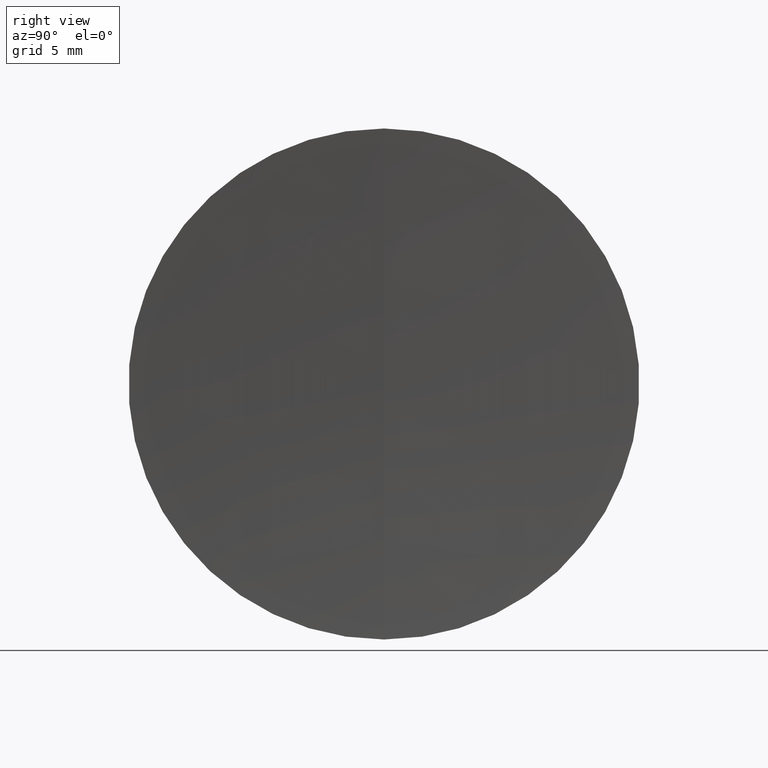
[diagram: clean part render]
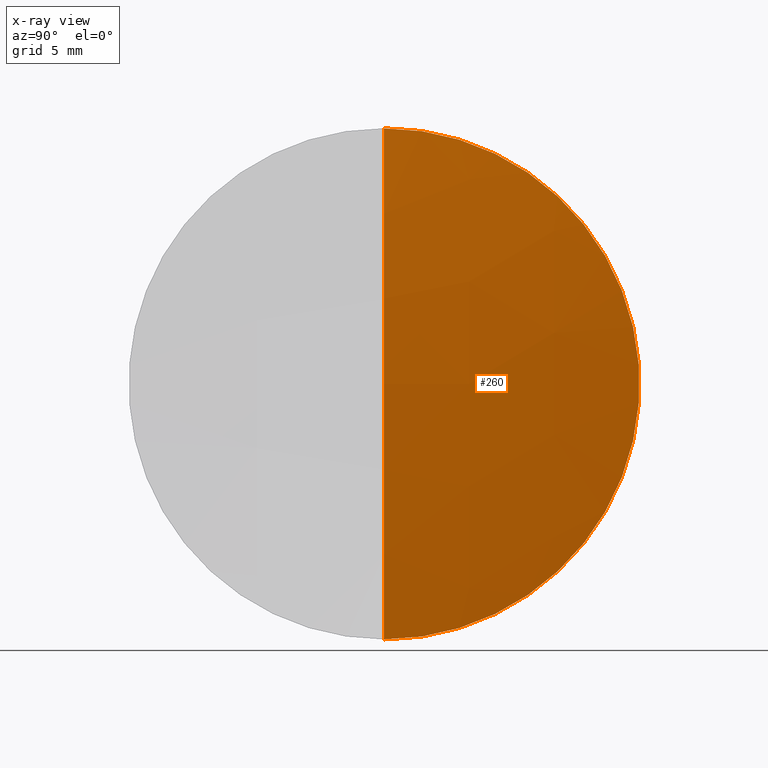
[diagram: x-ray — body ghosted, one internal face saturated and labeled with its STEP entity id]
A machine part, right view, then the same camera in x-ray: the body is ghosted and one INTERNAL B-rep face — a face not visible from any outside direction — is saturated and labeled: STEP entity #260.
In plain terms, the highlighted spherical surface has radius 115.45 mm.
Its self-contained STEP definition (entity closure, byte-faithful):
#39 = CARTESIAN_POINT ( 'NONE',  ( 95.07472966492228700, 0.0000000000000000000, 0.0000000000000000000 ) ) ;
#45 = DIRECTION ( 'NONE',  ( 0.0000000000000000000, 1.000000000000000000, 0.0000000000000000000 ) ) ;
#46 = AXIS2_PLACEMENT_3D ( 'NONE', #39, #199, #71 ) ;
#59 = VERTEX_POINT ( 'NONE', #258 ) ;
#66 = CARTESIAN_POINT ( 'NONE',  ( -19.67461673844508900, 0.0000000000000000000, -4.590090452819805700E-014 ) ) ;
#71 = DIRECTION ( 'NONE',  ( 0.0000000000000000000, 0.0000000000000000000, 1.000000000000000000 ) ) ;
#73 = AXIS2_PLACEMENT_3D ( 'NONE', #115, #79, #155 ) ;
#79 = DIRECTION ( 'NONE',  ( 0.0000000000000000000, -1.000000000000000000, 0.0000000000000000000 ) ) ;
#92 = DIRECTION ( 'NONE',  ( 0.0000000000000000000, -1.224646799147353200E-016, 1.000000000000000000 ) ) ;
#93 = EDGE_CURVE ( 'NONE', #296, #59, #119, .T. ) ;
#98 = AXIS2_PLACEMENT_3D ( 'NONE', #66, #255, #92 ) ;
#115 = CARTESIAN_POINT ( 'NONE',  ( -19.67461673844508900, 0.0000000000000000000, -4.590090452819805700E-014 ) ) ;
#119 = CIRCLE ( 'NONE', #98, 115.4500000000000200 ) ;
#126 = FACE_OUTER_BOUND ( 'NONE', #160, .T. ) ;
#147 = CIRCLE ( 'NONE', #73, 115.4500000000000200 ) ;
#155 = DIRECTION ( 'NONE',  ( 0.0000000000000000000, 0.0000000000000000000, -1.000000000000000000 ) ) ;
#160 = EDGE_LOOP ( 'NONE', ( #327, #298, #246 ) ) ;
#184 = EDGE_CURVE ( 'NONE', #218, #59, #275, .T. ) ;
#199 = DIRECTION ( 'NONE',  ( -1.000000000000000000, -0.0000000000000000000, -0.0000000000000000000 ) ) ;
#206 = DIRECTION ( 'NONE',  ( 0.0000000000000000000, 0.0000000000000000000, 1.000000000000000000 ) ) ;
#218 = VERTEX_POINT ( 'NONE', #267 ) ;
#246 = ORIENTED_EDGE ( 'NONE', *, *, #184, .F. ) ;
#255 = DIRECTION ( 'NONE',  ( -0.0000000000000000000, 1.000000000000000000, 1.224646799147353200E-016 ) ) ;
#258 = CARTESIAN_POINT ( 'NONE',  ( 95.07472966492228700, 1.555301434917141000E-015, -12.70000000000002100 ) ) ;
#260 = ADVANCED_FACE ( 'NONE', ( #126 ), #274, .T. ) ;
#267 = CARTESIAN_POINT ( 'NONE',  ( 95.07472966492228700, 0.0000000000000000000, 12.70000000000001900 ) ) ;
#270 = CARTESIAN_POINT ( 'NONE',  ( -19.67461673844508900, 0.0000000000000000000, -4.590090452819805700E-014 ) ) ;
#274 = SPHERICAL_SURFACE ( 'NONE', #308, 115.4500000000000200 ) ;
#275 = CIRCLE ( 'NONE', #46, 12.70000000000001900 ) ;
#296 = VERTEX_POINT ( 'NONE', #321 ) ;
#298 = ORIENTED_EDGE ( 'NONE', *, *, #93, .T. ) ;
#308 = AXIS2_PLACEMENT_3D ( 'NONE', #270, #45, #206 ) ;
#321 = CARTESIAN_POINT ( 'NONE',  ( 95.77538326155492100, 0.0000000000000000000, -3.883163088011996400E-014 ) ) ;
#327 = ORIENTED_EDGE ( 'NONE', *, *, #329, .F. ) ;
#329 = EDGE_CURVE ( 'NONE', #296, #218, #147, .T. ) ;